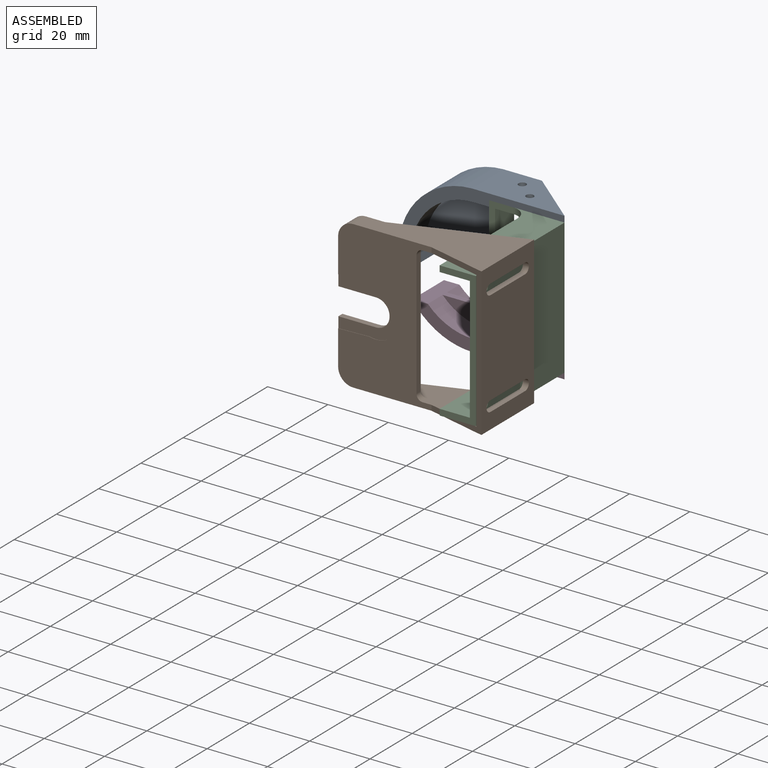
[diagram: assembled view]
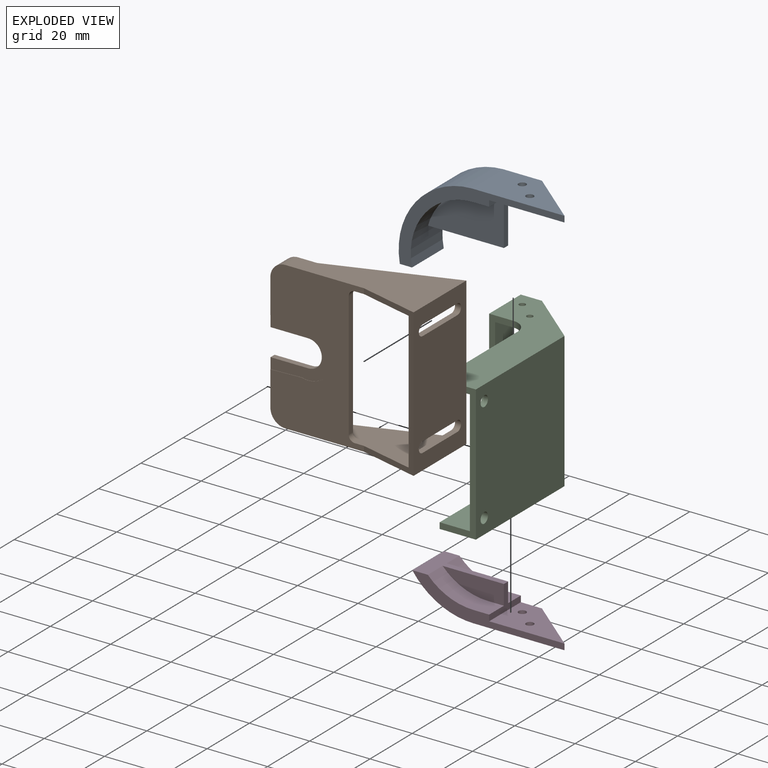
[diagram: exploded view]
GUIDED TOUR — MATED ASSEMBLY (Onshape document 6b2bc9cf1757ec946887c4e4, AutoMate assembly 6b2bc9cf1757ec946887c4e4_048924c097864f2399749b74_1bc15a067dcb2073bacf79a5_default)

This assembly has 4 components, labeled P0..P3 below (a component is one placed occurrence of a part; the same part can appear more than once), held together by 5 mates. A mate is a constraint between two components; its type names the relative motion it leaves free:
  FASTENED — locks the two components together rigidly (no relative motion),
  REVOLUTE — leaves rotation about the listed axis free (a hinge).
Axis/direction vectors are unit vectors and 'through' points are millimeter coordinates, both in the assembly's world frame.

MATES
  1. REVOLUTE "Revolute 4": P3 <-> P2, axis (0.000, 0.000, 1.000) through (10.00, -10.00, -45.00) mm
  2. REVOLUTE "Revolute 2": P0 <-> P2, axis (0.000, 0.000, -1.000) through (4.00, -5.00, 0.00) mm
  3. REVOLUTE "Revolute 1": P0 <-> P2, axis (0.000, 0.000, -1.000) through (10.00, -10.00, 0.00) mm
  4. REVOLUTE "Revolute 3": P3 <-> P2, axis (0.000, 0.000, 1.000) through (4.00, -5.00, -45.00) mm
  5. FASTENED "Fastened 1": P2 <-> P1, direction (1.000, 0.000, 0.000) through (25.00, -53.00, -40.00) mm

ASSEMBLY ORDER
  1. P0 — the base component [order verified]
  2. P2 [order verified]
  3. P1 [order verified]
  4. P3 [order verified]
Order-tag legend:
  [order verified] — this step's position reverses a verified removal order: the component was checked to insert without passing through the ones already placed.

Of the 4 components, 1 carries the full construction recipe — the FeatureScript program that regenerates the part's solid from scratch; the rest are supplied as boundary geometry only.
Each toured component is shown spotlighted twice — in the assembled view, then in the exploded view, where a leader line traces a displaced component back to its assembled socket (saturated green if recipe-attached, orange if geometry-only; every other component desaturated gray) — followed by its recipe or geometry summary and the mates that hold it.
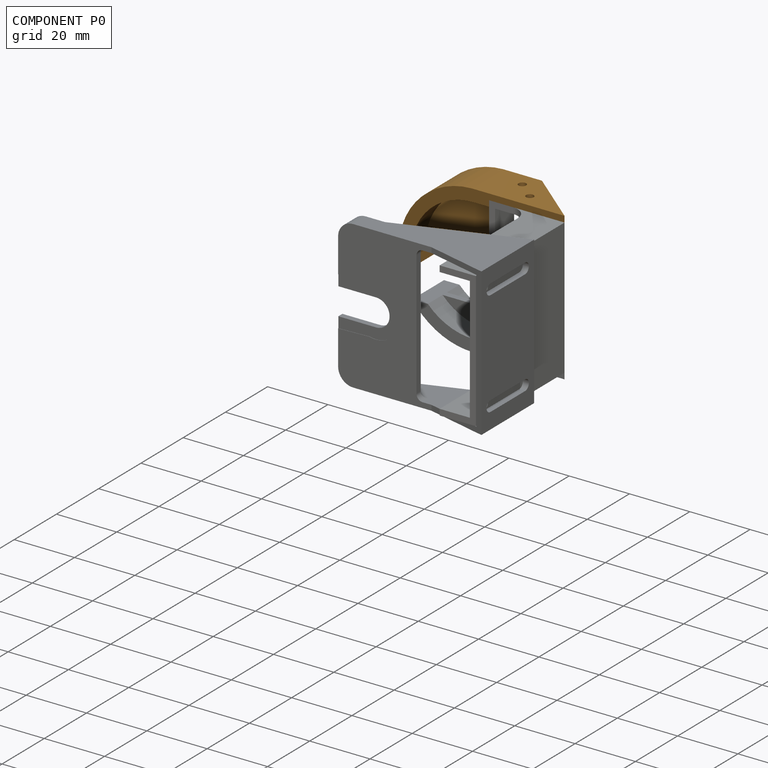
[diagram: component P0 — assembled]
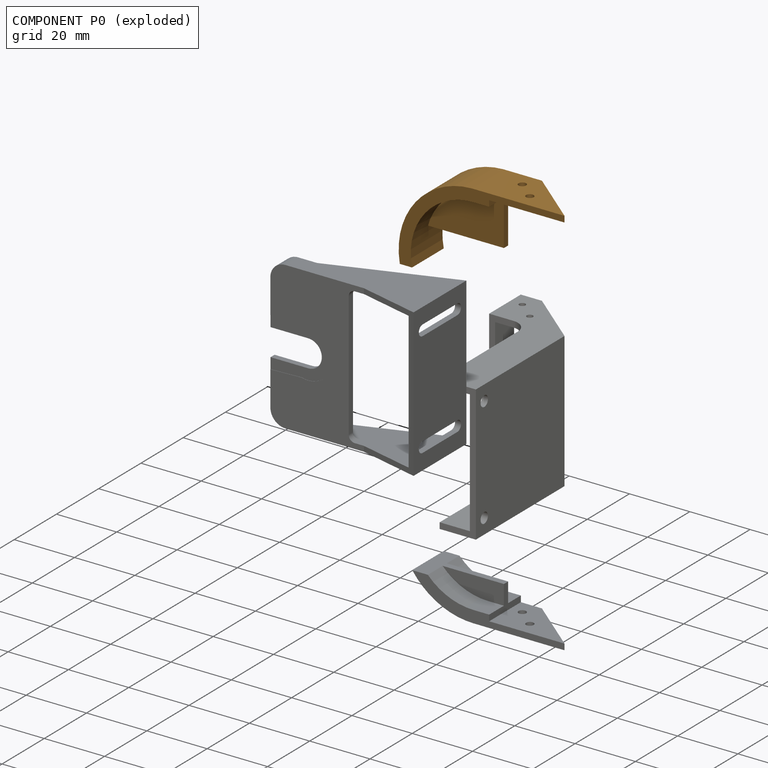
[diagram: component P0 — exploded]
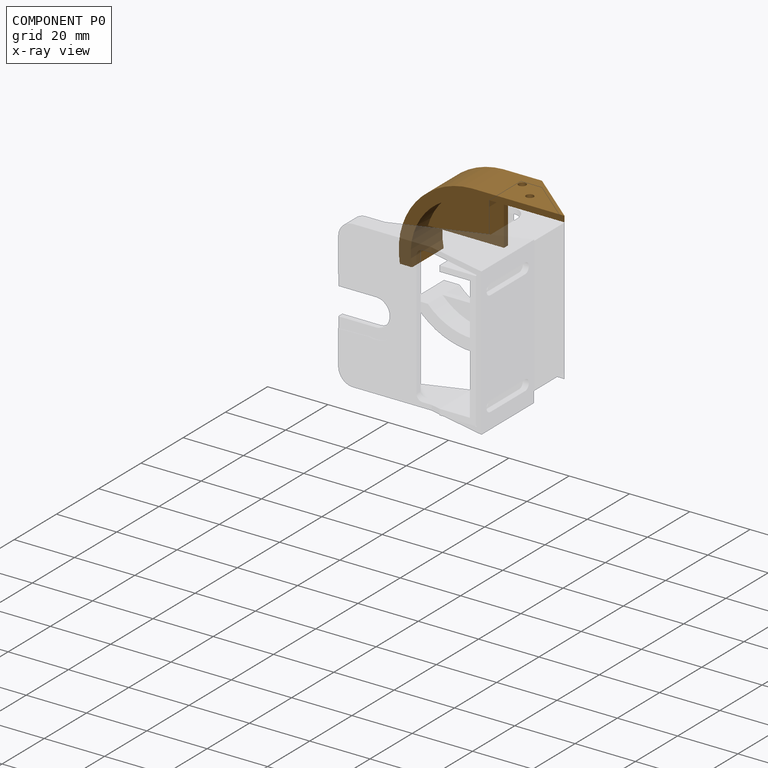
[diagram: component P0 — x-ray view]
COMPONENT P0 — geometry summary (no construction recipe available for this part):
  bounding box: 55.0 x 29.0 x 15.0 mm
  B-rep topology: 1 solid, 17 faces, 92 edges
  volume: 3775 mm^3 (16% of its bounding box)
Held by: REVOLUTE mate "Revolute 2" to P2; REVOLUTE mate "Revolute 1" to P2.
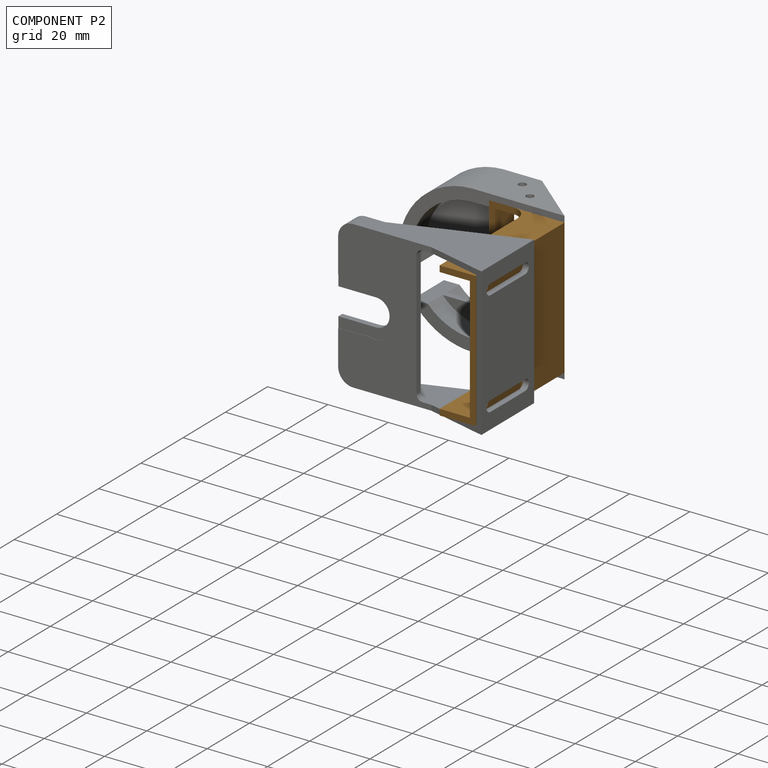
[diagram: component P2 — assembled]
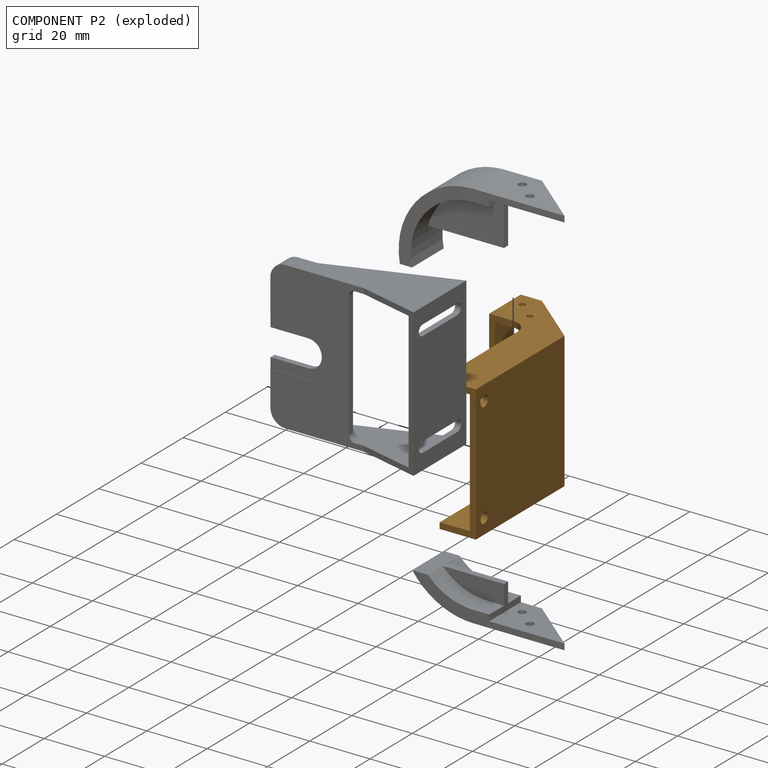
[diagram: component P2 — exploded]
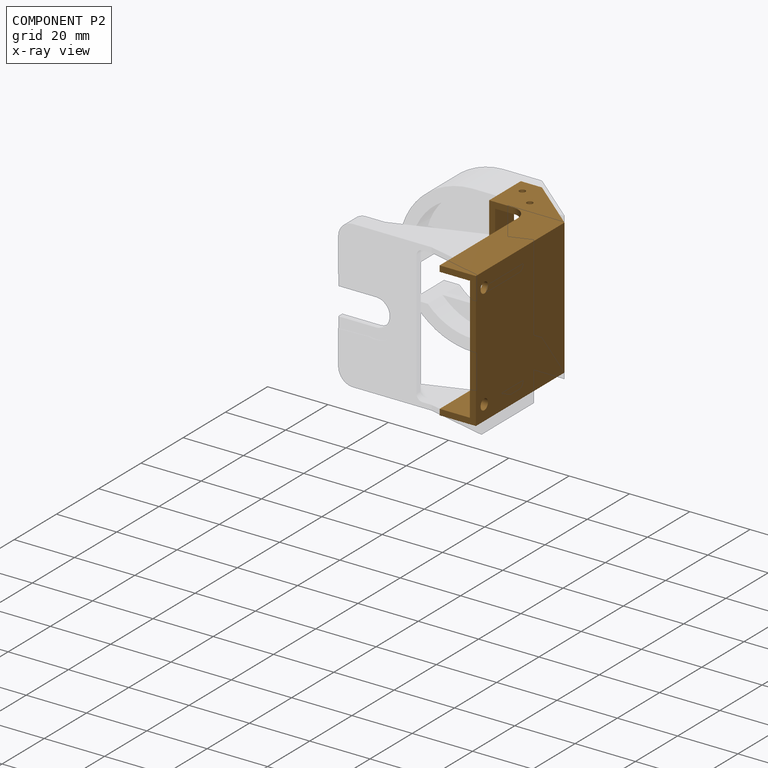
[diagram: component P2 — x-ray view]
COMPONENT P2 — geometry summary (no construction recipe available for this part):
  bounding box: 57.0 x 45.0 x 25.0 mm
  B-rep topology: 1 solid, 32 faces, 194 edges
  volume: 8642 mm^3 (13% of its bounding box)
Held by: REVOLUTE mate "Revolute 4" to P3; REVOLUTE mate "Revolute 2" to P0; REVOLUTE mate "Revolute 1" to P0; REVOLUTE mate "Revolute 3" to P3; FASTENED mate "Fastened 1" to P1.
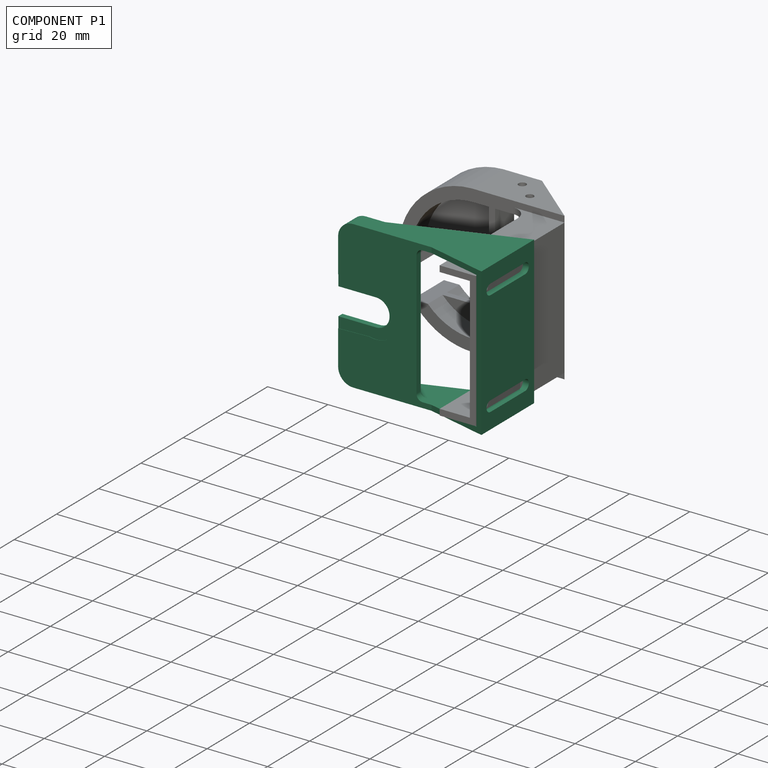
[diagram: component P1 — assembled]
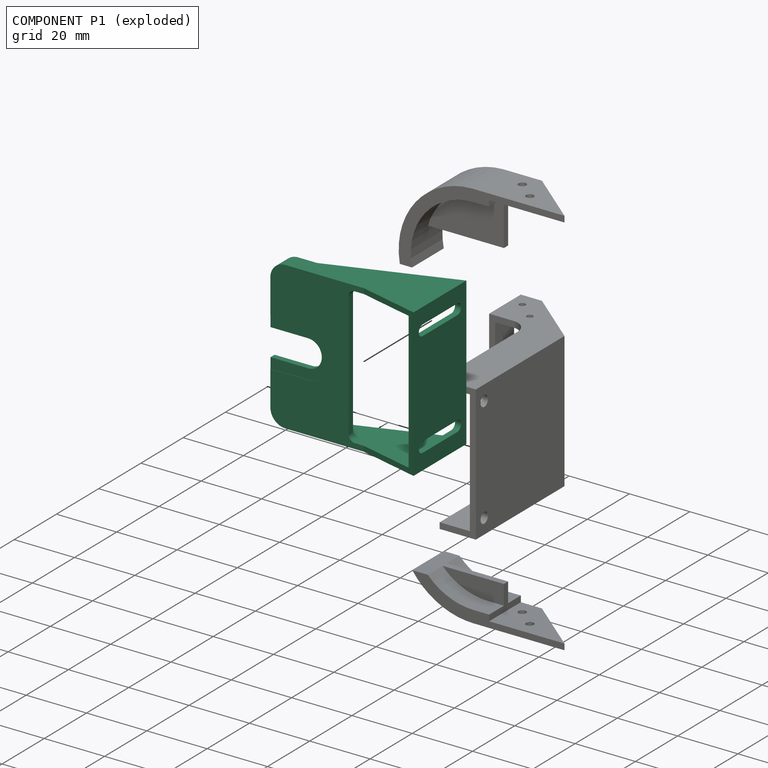
[diagram: component P1 — exploded]
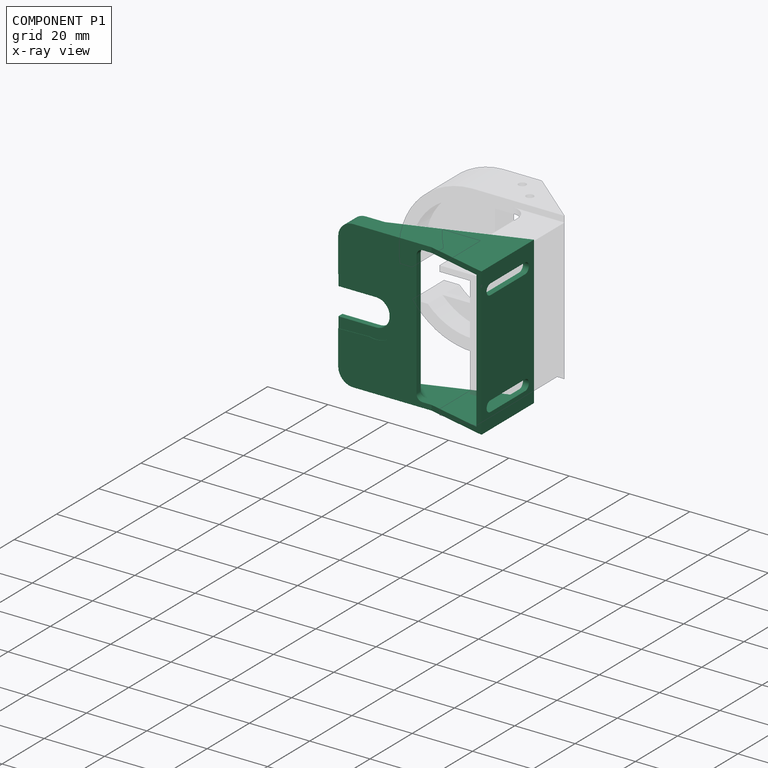
[diagram: component P1 — x-ray view]
COMPONENT P1 — recipe-attached (CADFS 00130808, mesh-verified: the recipe's output STEP matches this component's geometry to below the mesh-comparison resolution (tessellation chordal tolerance ~0.113 mm)).
Held by: FASTENED mate "Fastened 1" to P2.
Construction recipe (FeatureScript — the CAD program that rebuilds this solid; sketch coordinates are in the units given by the * unit suffixes, e.g. mm):

FeatureScript 1511;
import(path : "onshape/std/geometry.fs", version : "1511.0");
import(path : "onshape/std/common.fs", version : "1511.0");
const mm = millimeter;
const VERTEX = EntityType.VERTEX;
const EDGE = EntityType.EDGE;
const FACE = EntityType.FACE;
const BODY = EntityType.BODY;
function v(x, y){return vector(x, y);}
function OD(order){return orderDisambiguation(order);}
function OSD(set){return originalSetDisambiguation(set);}
function TD(topology){return topologyDisambiguation(topology);}
function TDD(query){return trueDependencyDisambiguation(query);}
function sQuery(a, b, c) {return sketchEntityQuery(a, b, c);}

annotation { "Feature Type Name" : "Feature", "Feature Type Description" : "" }
export const myFeature = defineFeature(function(context is Context, id is Id, definition is map)
    precondition{}
    {
        {
            var Q0;
            Q0=qCreatedBy(makeId("Top.planeOp"),FACE);
            var sketch = newSketch(context, id + "F0", { "sketchPlane" : qUnion([Q0])});
            skLineSegment(sketch, "E0.bottom", {"start": v(0, 2) * mm, "end": v(51, 2) * mm});
            skLineSegment(sketch, "E0.top", {"start": v(0, 0) * mm, "end": v(0, 0) * mm});
            skLineSegment(sketch, "E0.left", {"start": v(0, 2) * mm, "end": v(0, 0) * mm});
            skLineSegment(sketch, "E1", {"start": v(51, 2) * mm, "end": v(51, -18) * mm});
            skLineSegment(sketch, "E2", {"start": v(0, 0) * mm, "end": v(51, -18) * mm});
            skLineSegment(sketch, "E3", {"start": v(51, 2) * mm, "end": v(51, 7) * mm});
            skLineSegment(sketch, "E4", {"start": v(51, 7) * mm, "end": v(31, 2) * mm});
            skSolve(sketch);
        }
        {
            var Q0;
            Q0=makeQuery(id+"F0.imprint","IMPRINT",FACE,{"disambiguationData":[TD([[makeQuery(id+"F0.imprint","IMPRINT",EDGE,{"derivedFrom":sQuery(id+"F0.wireOp",EDGE,"E0.bottom")}),-1.0]])]});
            var Q1;
            {var subQ0=sQuery(id+"F0.wireOp",EDGE,"SCWSvQnW-zgxt-xv1m-XBCz-Pb8vfzgxZMeU");Q1=makeQuery(id+"F0.imprint","IMPRINT",FACE,{"disambiguationData":[TD([[makeQuery(id+"F0.imprint","IMPRINT",EDGE,{"derivedFrom":subQ0}),-1.0]])]});}
            var Q2;
            {var subQ0=sQuery(id+"F0.wireOp",EDGE,"E3");Q2=makeQuery(id+"F0.imprint","IMPRINT",FACE,{"disambiguationData":[TD([[makeQuery(id+"F0.imprint","IMPRINT",EDGE,{"derivedFrom":subQ0}),1.0]])]});}
            extrude(context, id + "F1", {"entities" : qUnion([Q0, Q1, Q2]), "depth" : 49 * mm});
        }
        {
            var Q0;
            Q0=makeQuery(id+"F1.opExtrude","SWEPT_FACE",FACE,{"disambiguationData":[OSD([sQuery(id+"F0.wireOp",EDGE,"E0.bottom")])]});
            var sketch = newSketch(context, id + "F2", { "sketchPlane" : qUnion([Q0])});
            skArc(sketch, "E5", {"start": v(-12.5, 29) * mm, "mid": v(-17, 24.5) * mm, "end": v(-12.5, 20) * mm});
            skPoint(sketch, "E5.centerSnap0", {"position": v(0, 24.5) * mm});
            skLineSegment(sketch, "E6.bottom", {"start": v(-12.5, 20) * mm, "end": v(0.01, 20) * mm});
            skLineSegment(sketch, "E6.top", {"start": v(-12.5, 29) * mm, "end": v(0, 29) * mm});
            skLineSegment(sketch, "E6.right", {"start": v(0.01, 20) * mm, "end": v(0, 29) * mm});
            skSolve(sketch);
        }
        {
            var Q0;
            Q0=makeQuery(id+"F2.imprint","IMPRINT",FACE,{"disambiguationData":[TD([[makeQuery(id+"F2.imprint","IMPRINT",EDGE,{"derivedFrom":sQuery(id+"F2.wireOp",EDGE,"E5")}),1.0]])]});
            extrude(context, id + "F3", {"entities" : qUnion([Q0]), "operationType" : NewBodyOperationType.REMOVE, "endBound" : BoundingType.UP_TO_NEXT, "oppositeDirection" : true, "depth" : 25 * mm});
        }
        {
            var Q0;
            Q0=makeQuery(id+"F1.opExtrude","SWEPT_FACE",FACE,{"disambiguationData":[OSD([sQuery(id+"F0.wireOp",EDGE,"E0.bottom")])]});
            var sketch = newSketch(context, id + "F4", { "sketchPlane" : qUnion([Q0])});
            skLineSegment(sketch, "E7.bottom", {"start": v(-49, 47.25) * mm, "end": v(-26, 47.25) * mm});
            skLineSegment(sketch, "E7.top", {"start": v(-49, 1.75) * mm, "end": v(-26, 1.75) * mm});
            skLineSegment(sketch, "E7.left", {"start": v(-49, 47.25) * mm, "end": v(-49, 1.75) * mm});
            skLineSegment(sketch, "E7.right", {"start": v(-26, 47.25) * mm, "end": v(-26, 1.75) * mm});
            skSolve(sketch);
        }
        {
            var Q0;
            Q0=makeQuery(id+"F4.imprint","IMPRINT",FACE,{"disambiguationData":[TD([[makeQuery(id+"F4.imprint","IMPRINT",EDGE,{"derivedFrom":sQuery(id+"F4.wireOp",EDGE,"E7.bottom")}),-1.0]])]});
            extrude(context, id + "F5", {"entities" : qUnion([Q0]), "operationType" : NewBodyOperationType.REMOVE, "endBound" : BoundingType.SYMMETRIC, "depth" : 50 * mm});
        }
        {
            var Q0;
            Q0=makeQuery(id+"F1.opExtrude","SWEPT_FACE",FACE,{"disambiguationData":[OSD([sQuery(id+"F0.wireOp",EDGE,"E1")])]});
            var sketch = newSketch(context, id + "F6", { "sketchPlane" : qUnion([Q0])});
            skCircle(sketch, "E8", {"center": v(2.75, 42) * mm, "radius": 1.75 * mm});
            skCircle(sketch, "E9", {"center": v(-13.75, 42) * mm, "radius": 1.75 * mm});
            skCircle(sketch, "E10", {"center": v(2.75, 7) * mm, "radius": 1.75 * mm});
            skCircle(sketch, "E11", {"center": v(-13.75, 7) * mm, "radius": 1.75 * mm});
            skLineSegment(sketch, "E12", {"start": v(2.75, 7) * mm, "end": v(2.75, 42) * mm});
            skLineSegment(sketch, "E13", {"start": v(7, 24.5) * mm, "end": v(2.75, 24.5) * mm});
            skPoint(sketch, "E13.endSnap0", {"position": v(7, 24.5) * mm});
            skLineSegment(sketch, "E14", {"start": v(-13.75, 5.25) * mm, "end": v(2.75, 5.25) * mm});
            skLineSegment(sketch, "E15", {"start": v(-13.75, 8.75) * mm, "end": v(2.75, 8.75) * mm});
            skLineSegment(sketch, "E16", {"start": v(2.75, 40.25) * mm, "end": v(-13.75, 40.25) * mm});
            skLineSegment(sketch, "E17", {"start": v(2.75, 43.75) * mm, "end": v(-13.75, 43.75) * mm});
            skSolve(sketch);
        }
        {
            var Q0;
            {var subQ0=sQuery(id+"F6.wireOp",EDGE,"E16");Q0=makeQuery(id+"F6.imprint","IMPRINT",FACE,{"disambiguationData":[TD([[makeQuery(id+"F6.imprint","IMPRINT",EDGE,{"derivedFrom":subQ0}),-1.0]])]});}
            var Q1;
            {var subQ0=sQuery(id+"F6.wireOp",EDGE,"E9");var subQ1=makeQuery(id+"F6.imprint","INTERSECT",VERTEX,{"derivedFrom":[subQ0,sQuery(id+"F6.wireOp",EDGE,"E16")]});Q1=makeQuery(id+"F6.imprint","IMPRINT",FACE,{"disambiguationData":[TD([[makeQuery(id+"F6.imprint","IMPRINT",EDGE,{"disambiguationData":[TD([[subQ1,1.0]])],"derivedFrom":subQ0}),1.0]])]});}
            var Q2;
            {var subQ0=sQuery(id+"F6.wireOp",EDGE,"E8");var subQ1=makeQuery(id+"F6.imprint","INTERSECT",VERTEX,{"derivedFrom":[subQ0,sQuery(id+"F6.wireOp",EDGE,"E16")]});Q2=makeQuery(id+"F6.imprint","IMPRINT",FACE,{"disambiguationData":[TD([[makeQuery(id+"F6.imprint","IMPRINT",EDGE,{"disambiguationData":[TD([[subQ1,1.0]])],"derivedFrom":subQ0}),1.0]])]});}
            var Q3;
            {var subQ0=sQuery(id+"F6.wireOp",EDGE,"E14");Q3=makeQuery(id+"F6.imprint","IMPRINT",FACE,{"disambiguationData":[TD([[makeQuery(id+"F6.imprint","IMPRINT",EDGE,{"derivedFrom":subQ0}),1.0]])]});}
            var Q4;
            {var subQ0=sQuery(id+"F6.wireOp",EDGE,"E11");var subQ1=makeQuery(id+"F6.imprint","INTERSECT",VERTEX,{"derivedFrom":[subQ0,sQuery(id+"F6.wireOp",EDGE,"E14")]});Q4=makeQuery(id+"F6.imprint","IMPRINT",FACE,{"disambiguationData":[TD([[makeQuery(id+"F6.imprint","IMPRINT",EDGE,{"disambiguationData":[TD([[subQ1,1.0]])],"derivedFrom":subQ0}),1.0]])]});}
            var Q5;
            {var subQ0=sQuery(id+"F6.wireOp",EDGE,"E10");var subQ1=makeQuery(id+"F6.imprint","INTERSECT",VERTEX,{"derivedFrom":[subQ0,sQuery(id+"F6.wireOp",EDGE,"E14")]});Q5=makeQuery(id+"F6.imprint","IMPRINT",FACE,{"disambiguationData":[TD([[makeQuery(id+"F6.imprint","IMPRINT",EDGE,{"disambiguationData":[TD([[subQ1,1.0]])],"derivedFrom":subQ0}),1.0]])]});}
            extrude(context, id + "F7", {"entities" : qUnion([Q0, Q1, Q2, Q3, Q4, Q5]), "operationType" : NewBodyOperationType.REMOVE, "endBound" : BoundingType.UP_TO_NEXT, "oppositeDirection" : true, "depth" : 25 * mm});
        }
        {
            var Q0;
            Q0=qCreatedBy(makeId("Front.planeOp"),FACE);
            var sketch = newSketch(context, id + "F8", { "sketchPlane" : qUnion([Q0])});
            skLineSegment(sketch, "E18.bottom", {"start": v(31.05, 47.25) * mm, "end": v(-2.7, 47.25) * mm});
            skLineSegment(sketch, "E18.top", {"start": v(31.05, 1.75) * mm, "end": v(-2.7, 1.75) * mm});
            skLineSegment(sketch, "E18.left", {"start": v(31.05, 47.25) * mm, "end": v(31.05, 1.75) * mm});
            skLineSegment(sketch, "E18.right", {"start": v(-2.7, 47.25) * mm, "end": v(-2.7, 1.75) * mm});
            skSolve(sketch);
        }
        {
            var Q0;
            Q0=qSketchRegion(id+"F8",true);
            extrude(context, id + "F9", {"entities" : qUnion([Q0]), "operationType" : NewBodyOperationType.REMOVE, "endBound" : BoundingType.THROUGH_ALL, "depth" : 25 * mm});
        }
        {
            var Q0;
            {var subQ3=sQuery(id+"F2.wireOp",EDGE,"E5");Q0=makeQuery(id+"F2.imprint","IMPRINT",FACE,{"disambiguationData":[TD([[makeQuery(id+"F2.imprint","IMPRINT",EDGE,{"derivedFrom":subQ3}),-1.0]])]});}
            var sketch = newSketch(context, id + "F10", { "sketchPlane" : qUnion([Q0])});
            skCircle(sketch, "E19", {"center": v(-12.5, 24.5) * mm, "radius": 8.1 * mm});
            skLineSegment(sketch, "E20", {"start": v(-10.32, 32.3) * mm, "end": v(0, 32.6) * mm});
            skLineSegment(sketch, "E21", {"start": v(-10.32, 16.7) * mm, "end": v(0, 16.4) * mm});
            skLineSegment(sketch, "E22", {"start": v(0, 16.4) * mm, "end": v(0, 32.6) * mm});
            skSolve(sketch);
        }
        {
            var Q0;
            Q0=qSketchRegion(id+"F10",true);
            extrude(context, id + "F11", {"entities" : qUnion([Q0]), "operationType" : NewBodyOperationType.REMOVE, "oppositeDirection" : true, "depth" : 0.1 * mm});
        }
        {
            var Q0;
            Q0=makeQuery(id+"F9.boolean.opBoolean","COPY",FACE,{"derivedFrom":makeQuery(id+"F9.opExtrude","CAP_FACE",FACE,{"disambiguationData":[OSD([sQuery(id+"F8.wireOp",EDGE,"E18.bottom"),sQuery(id+"F8.wireOp",EDGE,"E18.top"),sQuery(id+"F8.wireOp",EDGE,"E18.left"),sQuery(id+"F8.wireOp",EDGE,"E18.right")])],"isStart":true})});
            var sketch = newSketch(context, id + "F12", { "sketchPlane" : qUnion([Q0])});
            skLineSegment(sketch, "E23.bottom", {"start": v(0, 49) * mm, "end": v(26, 49) * mm});
            skLineSegment(sketch, "E23.top", {"start": v(0, 42) * mm, "end": v(26, 42) * mm});
            skLineSegment(sketch, "E23.left", {"start": v(0, 49) * mm, "end": v(0, 42) * mm});
            skLineSegment(sketch, "E23.right", {"start": v(26, 49) * mm, "end": v(26, 42) * mm});
            skLineSegment(sketch, "E24.bottom", {"start": v(0, 7) * mm, "end": v(26, 7) * mm});
            skLineSegment(sketch, "E24.top", {"start": v(0, 0) * mm, "end": v(26, 0) * mm});
            skLineSegment(sketch, "E24.left", {"start": v(0, 7) * mm, "end": v(0, 0) * mm});
            skLineSegment(sketch, "E24.right", {"start": v(26, 7) * mm, "end": v(26, 0) * mm});
            skLineSegment(sketch, "E25", {"start": v(0, 42) * mm, "end": v(0, 7) * mm});
            skLineSegment(sketch, "E26", {"start": v(17, 24.5) * mm, "end": v(0, 24.5) * mm});
            skSolve(sketch);
        }
        {
            var Q0;
            {var subQ0=sQuery(id+"F12.wireOp",EDGE,"E23.bottom");Q0=makeQuery(id+"F12.imprint","IMPRINT",FACE,{"disambiguationData":[TD([[makeQuery(id+"F12.imprint","IMPRINT",EDGE,{"derivedFrom":subQ0}),-1.0]])]});}
            var Q1;
            {var subQ0=sQuery(id+"F12.wireOp",EDGE,"E24.top");Q1=makeQuery(id+"F12.imprint","IMPRINT",FACE,{"disambiguationData":[TD([[makeQuery(id+"F12.imprint","IMPRINT",EDGE,{"derivedFrom":subQ0}),1.0]])]});}
            var Q2;
            {var subQ0=sQuery(id+"F12.wireOp",EDGE,"E23.top");Q2=makeQuery(id+"F12.imprint","IMPRINT",FACE,{"disambiguationData":[TD([[makeQuery(id+"F12.imprint","IMPRINT",EDGE,{"derivedFrom":subQ0}),1.0]])]});}
            var Q3;
            {var subQ0=sQuery(id+"F12.wireOp",EDGE,"E24.bottom");Q3=makeQuery(id+"F12.imprint","IMPRINT",FACE,{"disambiguationData":[TD([[makeQuery(id+"F12.imprint","IMPRINT",EDGE,{"derivedFrom":subQ0}),-1.0]])]});}
            extrude(context, id + "F13", {"entities" : qUnion([Q0, Q1, Q2, Q3]), "operationType" : NewBodyOperationType.ADD, "depth" : 4 * mm});
        }
        {
            var Q0;
            Q0=makeQuery(id+"F13.opExtrude","CAP_EDGE",EDGE,{"disambiguationData":[OSD([sQuery(id+"F12.wireOp",EDGE,"E24.right")])],"isStart":false});
            var Q1;
            Q1=makeQuery(id+"F13.opExtrude","CAP_EDGE",EDGE,{"disambiguationData":[OSD([sQuery(id+"F12.wireOp",EDGE,"E23.right")])],"isStart":false});
            chamfer(context, id + "F14", {"entities" : qUnion([Q0, Q1]), "width" : 4 * mm, "tangentPropagation" : true});
        }
        {
            var Q0;
            Q0=makeQuery(id+"F13.boolean.opBoolean","INTERSECT",EDGE,{"derivedFrom":[makeQuery(id+"F9.boolean.opBoolean","MERGE",FACE,{"derivedFrom":[makeQuery(id+"F5.boolean.opBoolean","COPY",FACE,{"derivedFrom":makeQuery(id+"F5.opExtrude","SWEPT_FACE",FACE,{"disambiguationData":[OSD([sQuery(id+"F4.wireOp",EDGE,"E7.top")])]})}),makeQuery(id+"F9.opExtrude","SWEPT_FACE",FACE,{"disambiguationData":[OSD([sQuery(id+"F8.wireOp",EDGE,"E18.top")])]})]}),makeQuery(id+"F13.opExtrude","CAP_FACE",FACE,{"disambiguationData":[OSD([sQuery(id+"F12.wireOp",EDGE,"E24.bottom"),sQuery(id+"F12.wireOp",EDGE,"E24.top"),sQuery(id+"F12.wireOp",EDGE,"E24.left"),sQuery(id+"F12.wireOp",EDGE,"E24.right")])],"isStart":false})]});
            var Q1;
            Q1=makeQuery(id+"F13.boolean.opBoolean","INTERSECT",EDGE,{"derivedFrom":[makeQuery(id+"F9.boolean.opBoolean","MERGE",FACE,{"derivedFrom":[makeQuery(id+"F5.boolean.opBoolean","COPY",FACE,{"derivedFrom":makeQuery(id+"F5.opExtrude","SWEPT_FACE",FACE,{"disambiguationData":[OSD([sQuery(id+"F4.wireOp",EDGE,"E7.bottom")])]})}),makeQuery(id+"F9.opExtrude","SWEPT_FACE",FACE,{"disambiguationData":[OSD([sQuery(id+"F8.wireOp",EDGE,"E18.bottom")])]})]}),makeQuery(id+"F13.opExtrude","CAP_FACE",FACE,{"disambiguationData":[OSD([sQuery(id+"F12.wireOp",EDGE,"E23.bottom"),sQuery(id+"F12.wireOp",EDGE,"E23.top"),sQuery(id+"F12.wireOp",EDGE,"E23.left"),sQuery(id+"F12.wireOp",EDGE,"E23.right")])],"isStart":false})]});
            var Q2;
            Q2=makeQuery(id+"F14.opChamfer","BLEND_EDGE",EDGE,{"blendedFrom":[makeQuery(id+"F13.opExtrude","CAP_EDGE",EDGE,{"disambiguationData":[OSD([sQuery(id+"F12.wireOp",EDGE,"E23.right")])],"isStart":false}),makeQuery(id+"F9.boolean.opBoolean","MERGE",FACE,{"derivedFrom":[makeQuery(id+"F5.boolean.opBoolean","COPY",FACE,{"derivedFrom":makeQuery(id+"F5.opExtrude","SWEPT_FACE",FACE,{"disambiguationData":[OSD([sQuery(id+"F4.wireOp",EDGE,"E7.bottom")])]})}),makeQuery(id+"F9.opExtrude","SWEPT_FACE",FACE,{"disambiguationData":[OSD([sQuery(id+"F8.wireOp",EDGE,"E18.bottom")])]})]})],"blendedInto":[makeQuery(id+"F9.boolean.opBoolean","MERGE",FACE,{"derivedFrom":[makeQuery(id+"F5.boolean.opBoolean","COPY",FACE,{"derivedFrom":makeQuery(id+"F5.opExtrude","SWEPT_FACE",FACE,{"disambiguationData":[OSD([sQuery(id+"F4.wireOp",EDGE,"E7.bottom")])]})}),makeQuery(id+"F9.opExtrude","SWEPT_FACE",FACE,{"disambiguationData":[OSD([sQuery(id+"F8.wireOp",EDGE,"E18.bottom")])]})]})]});
            var Q3;
            Q3=makeQuery(id+"F14.opChamfer","BLEND_EDGE",EDGE,{"blendedFrom":[makeQuery(id+"F13.opExtrude","CAP_EDGE",EDGE,{"disambiguationData":[OSD([sQuery(id+"F12.wireOp",EDGE,"E24.right")])],"isStart":false}),makeQuery(id+"F9.boolean.opBoolean","MERGE",FACE,{"derivedFrom":[makeQuery(id+"F5.boolean.opBoolean","COPY",FACE,{"derivedFrom":makeQuery(id+"F5.opExtrude","SWEPT_FACE",FACE,{"disambiguationData":[OSD([sQuery(id+"F4.wireOp",EDGE,"E7.top")])]})}),makeQuery(id+"F9.opExtrude","SWEPT_FACE",FACE,{"disambiguationData":[OSD([sQuery(id+"F8.wireOp",EDGE,"E18.top")])]})]})],"blendedInto":[makeQuery(id+"F9.boolean.opBoolean","MERGE",FACE,{"derivedFrom":[makeQuery(id+"F5.boolean.opBoolean","COPY",FACE,{"derivedFrom":makeQuery(id+"F5.opExtrude","SWEPT_FACE",FACE,{"disambiguationData":[OSD([sQuery(id+"F4.wireOp",EDGE,"E7.top")])]})}),makeQuery(id+"F9.opExtrude","SWEPT_FACE",FACE,{"disambiguationData":[OSD([sQuery(id+"F8.wireOp",EDGE,"E18.top")])]})]})]});
            var Q4;
            {var subQ0=sQuery(id+"F12.wireOp",EDGE,"E24.right");Q4=makeQuery(id+"F14.opChamfer","BLEND_EDGE",EDGE,{"blendedFrom":[makeQuery(id+"F13.opExtrude","CAP_EDGE",EDGE,{"disambiguationData":[OSD([subQ0])],"isStart":false}),makeQuery(id+"F13.opExtrude","CAP_FACE",FACE,{"disambiguationData":[OSD([sQuery(id+"F12.wireOp",EDGE,"E24.bottom"),sQuery(id+"F12.wireOp",EDGE,"E24.top"),sQuery(id+"F12.wireOp",EDGE,"E24.left"),subQ0])],"isStart":false})],"blendedInto":[makeQuery(id+"F13.opExtrude","CAP_FACE",FACE,{"disambiguationData":[OSD([sQuery(id+"F12.wireOp",EDGE,"E24.bottom"),sQuery(id+"F12.wireOp",EDGE,"E24.top"),sQuery(id+"F12.wireOp",EDGE,"E24.left"),subQ0])],"isStart":false})]});}
            var Q5;
            {var subQ0=sQuery(id+"F12.wireOp",EDGE,"E23.right");Q5=makeQuery(id+"F14.opChamfer","BLEND_EDGE",EDGE,{"blendedFrom":[makeQuery(id+"F13.opExtrude","CAP_EDGE",EDGE,{"disambiguationData":[OSD([subQ0])],"isStart":false}),makeQuery(id+"F13.opExtrude","CAP_FACE",FACE,{"disambiguationData":[OSD([sQuery(id+"F12.wireOp",EDGE,"E23.bottom"),sQuery(id+"F12.wireOp",EDGE,"E23.top"),sQuery(id+"F12.wireOp",EDGE,"E23.left"),subQ0])],"isStart":false})],"blendedInto":[makeQuery(id+"F13.opExtrude","CAP_FACE",FACE,{"disambiguationData":[OSD([sQuery(id+"F12.wireOp",EDGE,"E23.bottom"),sQuery(id+"F12.wireOp",EDGE,"E23.top"),sQuery(id+"F12.wireOp",EDGE,"E23.left"),subQ0])],"isStart":false})]});}
            var Q6;
            Q6=makeQuery(id+"F13.boolean.opBoolean","INTERSECT",EDGE,{"derivedFrom":[makeQuery(id+"F9.boolean.opBoolean","MERGE",FACE,{"derivedFrom":[makeQuery(id+"F5.boolean.opBoolean","COPY",FACE,{"derivedFrom":makeQuery(id+"F5.opExtrude","SWEPT_FACE",FACE,{"disambiguationData":[OSD([sQuery(id+"F4.wireOp",EDGE,"E7.top")])]})}),makeQuery(id+"F9.opExtrude","SWEPT_FACE",FACE,{"disambiguationData":[OSD([sQuery(id+"F8.wireOp",EDGE,"E18.top")])]})]}),makeQuery(id+"F13.opExtrude","SWEPT_FACE",FACE,{"disambiguationData":[OSD([sQuery(id+"F12.wireOp",EDGE,"E24.right")])]})]});
            var Q7;
            Q7=makeQuery(id+"F13.boolean.opBoolean","INTERSECT",EDGE,{"derivedFrom":[makeQuery(id+"F9.boolean.opBoolean","MERGE",FACE,{"derivedFrom":[makeQuery(id+"F5.boolean.opBoolean","COPY",FACE,{"derivedFrom":makeQuery(id+"F5.opExtrude","SWEPT_FACE",FACE,{"disambiguationData":[OSD([sQuery(id+"F4.wireOp",EDGE,"E7.bottom")])]})}),makeQuery(id+"F9.opExtrude","SWEPT_FACE",FACE,{"disambiguationData":[OSD([sQuery(id+"F8.wireOp",EDGE,"E18.bottom")])]})]}),makeQuery(id+"F13.opExtrude","SWEPT_FACE",FACE,{"disambiguationData":[OSD([sQuery(id+"F12.wireOp",EDGE,"E23.right")])]})]});
            fillet(context, id + "F15", {"entities" : qUnion([Q0, Q1, Q2, Q3, Q4, Q5, Q6, Q7]), "radius" : 2 * mm, "tangentPropagation" : true, "allowEdgeOverflow" : false});
        }
        {
            var Q0;
            Q0=makeQuery(id+"F13.boolean.opBoolean","MERGE",EDGE,{"derivedFrom":[makeQuery(id+"F1.opExtrude","CAP_EDGE",EDGE,{"disambiguationData":[OSD([sQuery(id+"F0.wireOp",EDGE,"E0.left")])],"isStart":false}),makeQuery(id+"F13.opExtrude","SWEPT_EDGE",EDGE,{"disambiguationData":[OSD([sQuery(id+"F12.wireOp",EDGE,"E23.bottom"),sQuery(id+"F12.wireOp",EDGE,"E23.left")])]})]});
            var Q1;
            Q1=makeQuery(id+"F13.boolean.opBoolean","MERGE",EDGE,{"derivedFrom":[makeQuery(id+"F1.opExtrude","CAP_EDGE",EDGE,{"disambiguationData":[OSD([sQuery(id+"F0.wireOp",EDGE,"E0.left")])],"isStart":true}),makeQuery(id+"F13.opExtrude","SWEPT_EDGE",EDGE,{"disambiguationData":[OSD([sQuery(id+"F12.wireOp",EDGE,"E24.top"),sQuery(id+"F12.wireOp",EDGE,"E24.left")])]})]});
            fillet(context, id + "F16", {"entities" : qUnion([Q0, Q1]), "radius" : 5 * mm, "tangentPropagation" : true, "allowEdgeOverflow" : false});
        }
    });
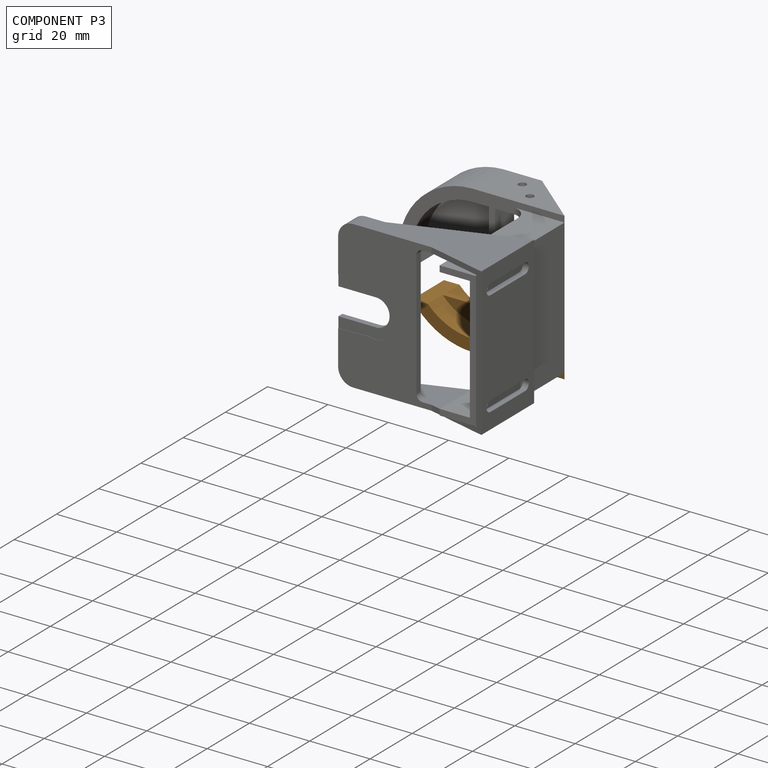
[diagram: component P3 — assembled]
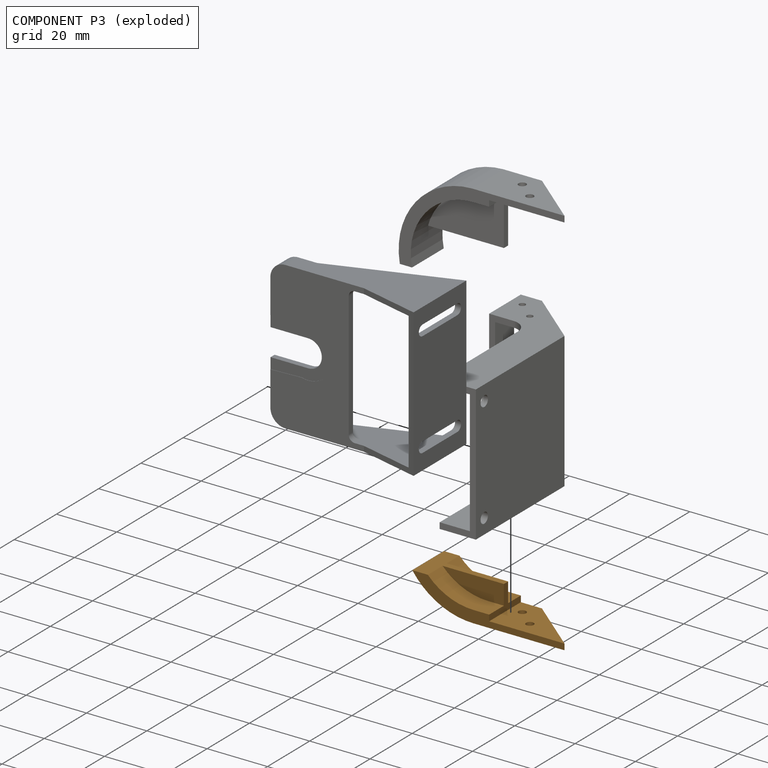
[diagram: component P3 — exploded]
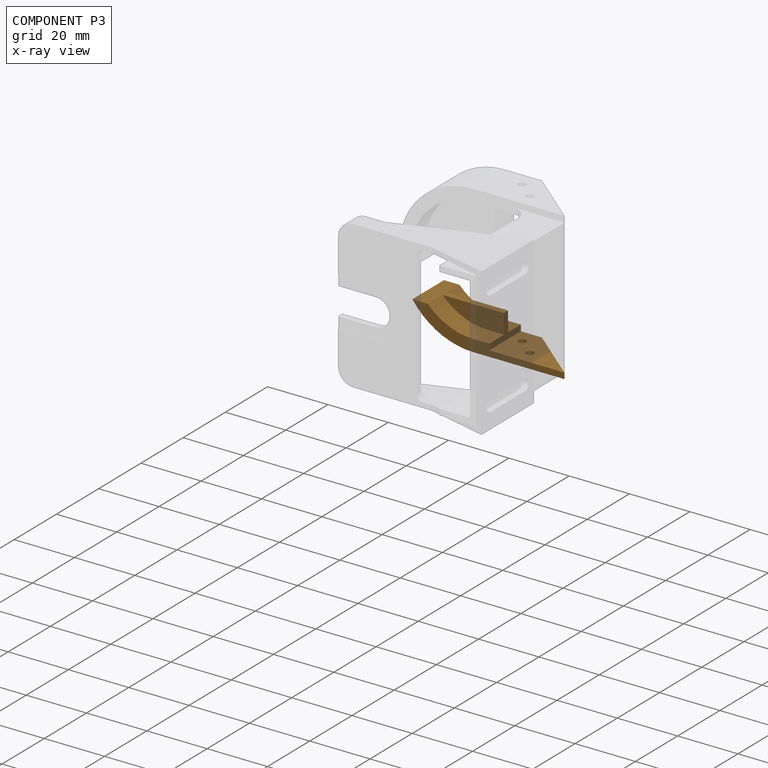
[diagram: component P3 — x-ray view]
COMPONENT P3 — geometry summary (no construction recipe available for this part):
  bounding box: 50.5 x 15.0 x 10.5 mm
  B-rep topology: 1 solid, 16 faces, 84 edges
  volume: 2198 mm^3 (28% of its bounding box)
Held by: REVOLUTE mate "Revolute 4" to P2; REVOLUTE mate "Revolute 3" to P2.
PROVENANCE & LICENSES
Assembly (occurrences, transforms, mates, per-part STEP geometry): AutoMate dataset, Zenodo record 7776208, CC0.
Construction recipes: CADFS (HuggingFace VladPyatov/CADFS, CC-BY-4.0, layered over the ABC dataset), FeatureScript reconstruction programs keyed by ABC model id.
Join: ABC meta listings map ABC model id -> Onshape documentId; within a shared document, parts are matched by geometric signature (bounding-box dims + volume at 0.1% relative tolerance, exact B-rep face/solid counts).
Verification: 1 of this assembly's 4 components carries a recipe attachment, and every attachment is mesh-verified: the CADFS STEP and the AutoMate member STEP were compared as meshes in their shared local frame (symmetric sampled-point-to-mesh distance); worst across the 1 attachment: below the mesh-comparison resolution (tessellation chordal tolerance ~0.113 mm) on a 75 mm part.
Renders: orthographic iso camera (az 35 / el 25); the floor grid conveys scale (grid pitch printed in each image; no ruler). In the exploded view each component is displaced by its stored offset vector: the offsets alone carry the explosion direction (mate normal/axis signs are not orientation cues and do not encode it), and separation distances are assigned per mate-chain, not proportionally to assembly-order depth.
